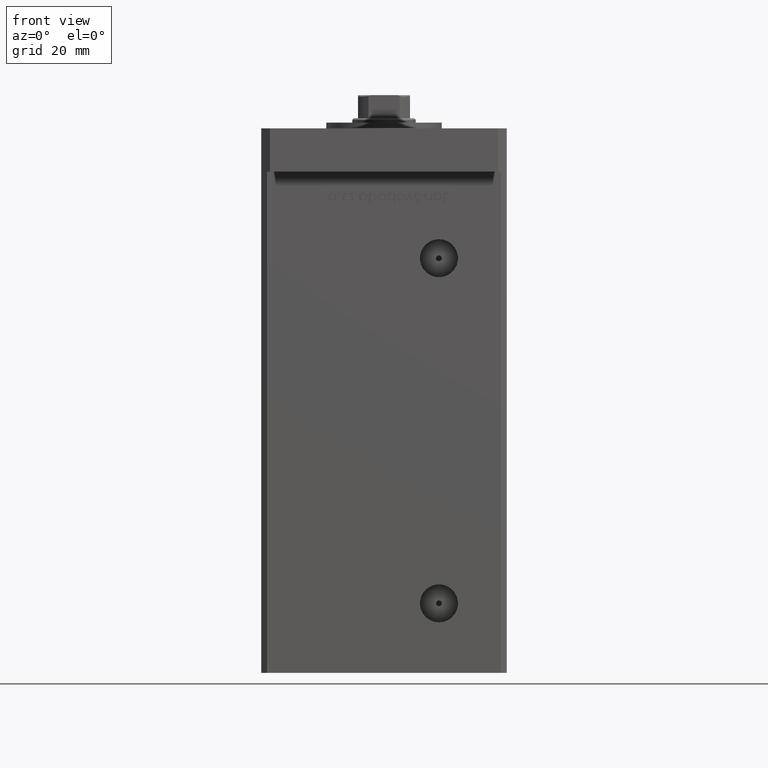
[diagram: clean part render]
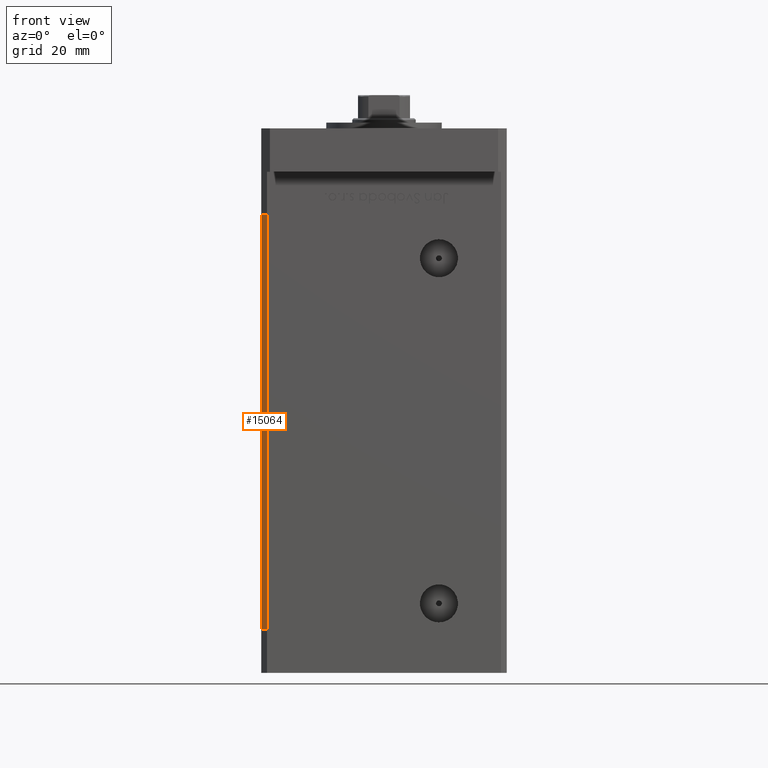
[diagram: same view with one face highlighted and labeled with its STEP entity id]
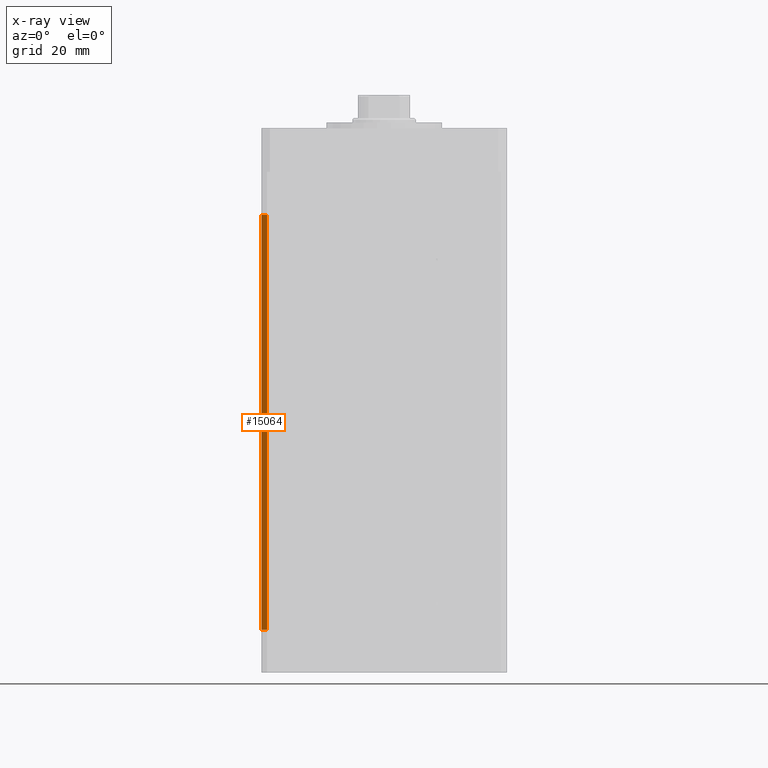
[diagram: x-ray of the same camera — body ghosted, the highlighted face saturated]
A machine part, front view. The second image highlights one B-rep face of the part: STEP entity #15064.
The next image is the same camera in x-ray: the body ghosted, the highlighted face saturated — about 0% of this face is hidden behind the body in this view.
In plain terms, the highlighted planar face has unit normal (0.7071, 0.7071, 0).
Its self-contained STEP definition (entity closure, byte-faithful):
#1769 = VERTEX_POINT ( 'NONE', #50771 ) ;
#3452 = LINE ( 'NONE', #3985, #49234 ) ;
#3972 = PLANE ( 'NONE',  #43541 ) ;
#3985 = CARTESIAN_POINT ( 'NONE',  ( -42.49999999999998579, -35.50000000000000711, 143.5000000000000000 ) ) ;
#4500 = CARTESIAN_POINT ( 'NONE',  ( -42.49999999999998579, -35.50000000000000711, 143.5000000000000000 ) ) ;
#5785 = CARTESIAN_POINT ( 'NONE',  ( -42.49999999999998579, -35.50000000000000711, 0.000000000000000000 ) ) ;
#6045 = DIRECTION ( 'NONE',  ( 0.7071067811865474617, -0.7071067811865474617, 0.000000000000000000 ) ) ;
#6581 = LINE ( 'NONE', #39424, #40226 ) ;
#6671 = ORIENTED_EDGE ( 'NONE', *, *, #19590, .F. ) ;
#8285 = ORIENTED_EDGE ( 'NONE', *, *, #35086, .T. ) ;
#10597 = CARTESIAN_POINT ( 'NONE',  ( -42.49999999999998579, -35.50000000000000711, 0.000000000000000000 ) ) ;
#12116 = FACE_OUTER_BOUND ( 'NONE', #50844, .T. ) ;
#15064 = ADVANCED_FACE ( 'NONE', ( #12116 ), #3972, .F. ) ;
#15390 = DIRECTION ( 'NONE',  ( -0.000000000000000000, -0.000000000000000000, -1.000000000000000000 ) ) ;
#17192 = DIRECTION ( 'NONE',  ( 0.7071067811865474617, -0.7071067811865474617, 0.000000000000000000 ) ) ;
#18520 = VECTOR ( 'NONE', #17192, 1000.000000000000114 ) ;
#19590 = EDGE_CURVE ( 'NONE', #43900, #1769, #6581, .T. ) ;
#20522 = EDGE_CURVE ( 'NONE', #34621, #43900, #39431, .T. ) ;
#20878 = VERTEX_POINT ( 'NONE', #10597 ) ;
#23404 = EDGE_CURVE ( 'NONE', #20878, #1769, #42419, .T. ) ;
#24337 = DIRECTION ( 'NONE',  ( -0.7071067811865474617, 0.7071067811865474617, 0.000000000000000000 ) ) ;
#31465 = VECTOR ( 'NONE', #6045, 1000.000000000000114 ) ;
#31519 = ORIENTED_EDGE ( 'NONE', *, *, #23404, .T. ) ;
#34108 = CARTESIAN_POINT ( 'NONE',  ( -40.49999999999998579, -37.50000000000000711, 143.5000000000000000 ) ) ;
#34621 = VERTEX_POINT ( 'NONE', #43604 ) ;
#35086 = EDGE_CURVE ( 'NONE', #34621, #20878, #3452, .T. ) ;
#38879 = DIRECTION ( 'NONE',  ( -0.000000000000000000, -0.000000000000000000, -1.000000000000000000 ) ) ;
#39424 = CARTESIAN_POINT ( 'NONE',  ( -40.49999999999998579, -37.50000000000000711, 143.5000000000000000 ) ) ;
#39431 = LINE ( 'NONE', #39686, #31465 ) ;
#39686 = CARTESIAN_POINT ( 'NONE',  ( -42.49999999999998579, -35.50000000000000711, 143.5000000000000000 ) ) ;
#40226 = VECTOR ( 'NONE', #38879, 1000.000000000000000 ) ;
#42419 = LINE ( 'NONE', #5785, #18520 ) ;
#43541 = AXIS2_PLACEMENT_3D ( 'NONE', #4500, #44944, #24337 ) ;
#43604 = CARTESIAN_POINT ( 'NONE',  ( -42.49999999999998579, -35.50000000000000711, 143.5000000000000000 ) ) ;
#43900 = VERTEX_POINT ( 'NONE', #34108 ) ;
#44944 = DIRECTION ( 'NONE',  ( 0.7071067811865475727, 0.7071067811865475727, -0.000000000000000000 ) ) ;
#49234 = VECTOR ( 'NONE', #15390, 1000.000000000000000 ) ;
#50771 = CARTESIAN_POINT ( 'NONE',  ( -40.49999999999998579, -37.50000000000000711, 0.000000000000000000 ) ) ;
#50844 = EDGE_LOOP ( 'NONE', ( #31519, #6671, #51810, #8285 ) ) ;
#51810 = ORIENTED_EDGE ( 'NONE', *, *, #20522, .F. ) ;